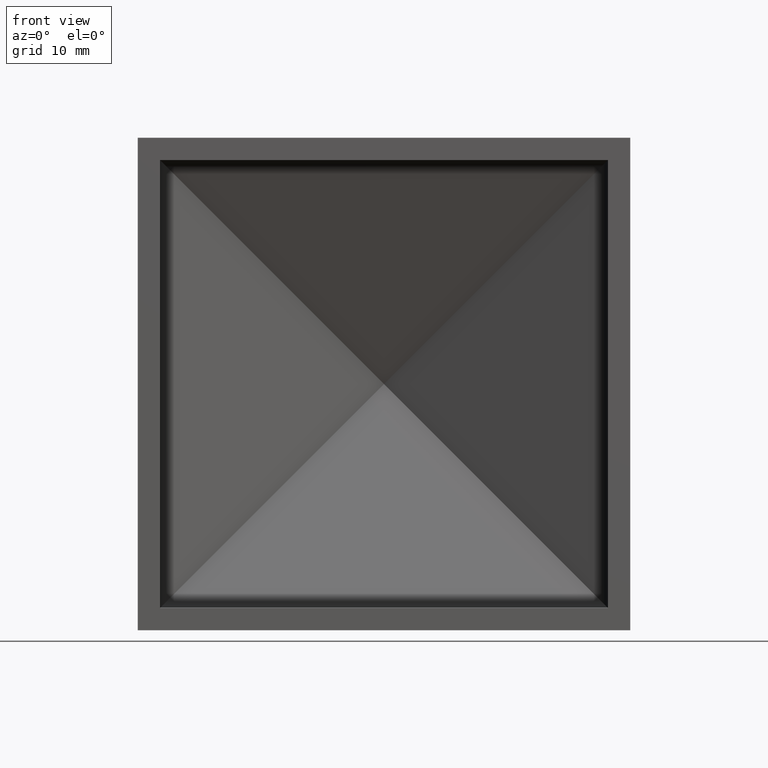
[diagram: clean part render]
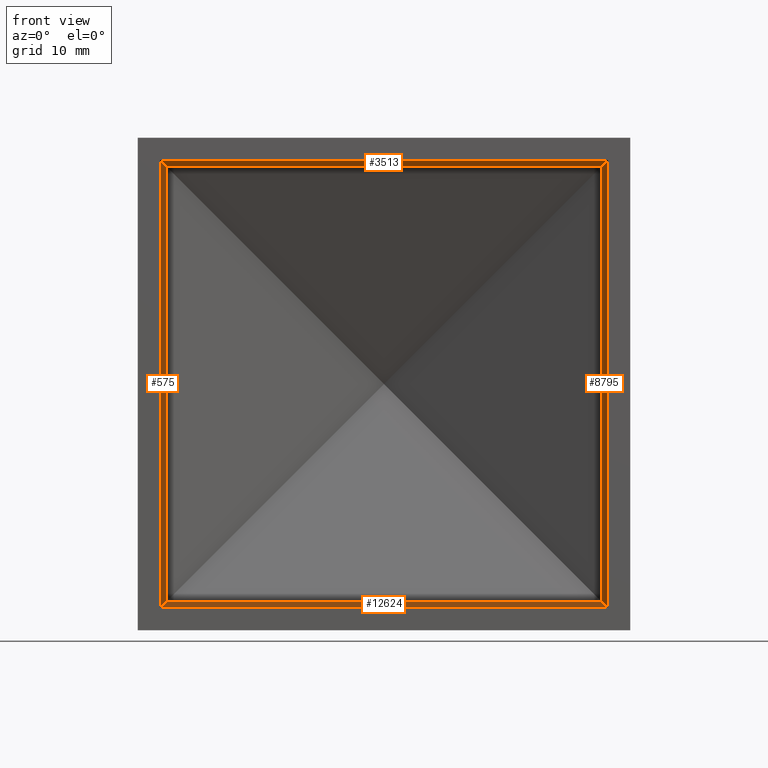
[diagram: same view with one multi-face feature highlighted, each face labeled with its STEP entity id]
A machine part, front view. The highlighted faces form ONE feature: a constant-radius fillet chain: 4 tangent blend faces with common blend radius 1 mm. The faces share edges in the B-rep.
Their STEP definitions:
[1] entity #8795 (Cylinder):
#24 = CARTESIAN_POINT ( 'NONE',  ( 19.41414115568450800, 8.979261153773027400, 19.41414115568449000 ) ) ;
#46 = CARTESIAN_POINT ( 'NONE',  ( 19.00000000000000000, 8.069048484575164400, -22.00000000000000000 ) ) ;
#65 = EDGE_CURVE ( 'NONE', #5117, #8418, #6607, .T. ) ;
#250 = LINE ( 'NONE', #898, #4968 ) ;
#317 = CARTESIAN_POINT ( 'NONE',  ( 19.99999999999998900, 8.069048484575166200, -20.00000000000000000 ) ) ;
#898 = CARTESIAN_POINT ( 'NONE',  ( 19.99999999999998900, 8.069048484575166200, -22.00000000000000000 ) ) ;
#1124 = CARTESIAN_POINT ( 'NONE',  ( 19.78153858745149700, 8.812097586250301300, -19.78153858745150700 ) ) ;
#1171 = CARTESIAN_POINT ( 'NONE',  ( 19.41414115568449000, 8.979261153773032700, -19.41414115568449700 ) ) ;
#1227 = CARTESIAN_POINT ( 'NONE',  ( 19.41414115568449700, 8.979261153773034500, -22.00000000000000000 ) ) ;
#2059 = FACE_OUTER_BOUND ( 'NONE', #2345, .T. ) ;
#2134 = AXIS2_PLACEMENT_3D ( 'NONE', #46, #10519, #9531 ) ;
#2168 = DIRECTION ( 'NONE',  ( -0.0000000000000000000, -0.0000000000000000000, 1.000000000000000000 ) ) ;
#2345 = EDGE_LOOP ( 'NONE', ( #10535, #10158, #7004, #12699 ) ) ;
#3067 = CARTESIAN_POINT ( 'NONE',  ( 19.99999999999999600, 8.069048484575164400, 19.99999999999999600 ) ) ;
#4809 =( BOUNDED_CURVE ( )  B_SPLINE_CURVE ( 3, ( #1171, #1124, #7945, #317 ),
 .UNSPECIFIED., .F., .T. ) 
 B_SPLINE_CURVE_WITH_KNOTS ( ( 4, 4 ),
 ( 1.997795362548790800, 3.141592653589791300 ),
 .UNSPECIFIED. ) 
 CURVE ( )  GEOMETRIC_REPRESENTATION_ITEM ( )  RATIONAL_B_SPLINE_CURVE ( ( 1.000000000000000000, 0.8939165922272380700, 0.8939165922272380700, 1.000000000000000000 ) ) 
 REPRESENTATION_ITEM ( '' )  );
#4968 = VECTOR ( 'NONE', #10604, 1000.000000000000000 ) ;
#5117 = VERTEX_POINT ( 'NONE', #10749 ) ;
#5398 = EDGE_CURVE ( 'NONE', #8787, #8418, #6982, .T. ) ;
#5574 = CARTESIAN_POINT ( 'NONE',  ( 19.41414115568449000, 8.979261153773032700, -19.41414115568449700 ) ) ;
#6418 = EDGE_CURVE ( 'NONE', #8787, #8215, #4809, .T. ) ;
#6607 =( BOUNDED_CURVE ( )  B_SPLINE_CURVE ( 3, ( #3067, #7912, #8890, #24 ),
 .UNSPECIFIED., .F., .F. ) 
 B_SPLINE_CURVE_WITH_KNOTS ( ( 4, 4 ),
 ( 0.0000000000000000000, 1.143797291040995500 ),
 .UNSPECIFIED. ) 
 CURVE ( )  GEOMETRIC_REPRESENTATION_ITEM ( )  RATIONAL_B_SPLINE_CURVE ( ( 1.000000000000000000, 0.8939165922272391800, 0.8939165922272391800, 1.000000000000000000 ) ) 
 REPRESENTATION_ITEM ( '' )  );
#6982 = LINE ( 'NONE', #1227, #11301 ) ;
#7004 = ORIENTED_EDGE ( 'NONE', *, *, #65, .T. ) ;
#7912 = CARTESIAN_POINT ( 'NONE',  ( 19.99999999999999300, 8.472687594642458500, 19.99999999999999300 ) ) ;
#7945 = CARTESIAN_POINT ( 'NONE',  ( 19.99999999999998600, 8.472687594642462000, -20.00000000000000400 ) ) ;
#8215 = VERTEX_POINT ( 'NONE', #10699 ) ;
#8418 = VERTEX_POINT ( 'NONE', #8532 ) ;
#8532 = CARTESIAN_POINT ( 'NONE',  ( 19.41414115568450800, 8.979261153773027400, 19.41414115568449000 ) ) ;
#8533 = EDGE_CURVE ( 'NONE', #8215, #5117, #250, .T. ) ;
#8787 = VERTEX_POINT ( 'NONE', #5574 ) ;
#8795 = ADVANCED_FACE ( 'NONE', ( #2059 ), #8990, .F. ) ;
#8890 = CARTESIAN_POINT ( 'NONE',  ( 19.78153858745150000, 8.812097586250297700, 19.78153858745150000 ) ) ;
#8990 = CYLINDRICAL_SURFACE ( 'NONE', #2134, 0.9999999999999974500 ) ;
#9531 = DIRECTION ( 'NONE',  ( 1.000000000000000000, 0.0000000000000000000, 0.0000000000000000000 ) ) ;
#10158 = ORIENTED_EDGE ( 'NONE', *, *, #8533, .T. ) ;
#10519 = DIRECTION ( 'NONE',  ( -0.0000000000000000000, -0.0000000000000000000, 1.000000000000000000 ) ) ;
#10535 = ORIENTED_EDGE ( 'NONE', *, *, #6418, .T. ) ;
#10604 = DIRECTION ( 'NONE',  ( 2.365532012695646200E-016, 0.0000000000000000000, 1.000000000000000000 ) ) ;
#10699 = CARTESIAN_POINT ( 'NONE',  ( 19.99999999999998900, 8.069048484575166200, -20.00000000000000000 ) ) ;
#10749 = CARTESIAN_POINT ( 'NONE',  ( 19.99999999999999600, 8.069048484575164400, 19.99999999999999600 ) ) ;
#11301 = VECTOR ( 'NONE', #2168, 1000.000000000000000 ) ;
#12699 = ORIENTED_EDGE ( 'NONE', *, *, #5398, .F. ) ;
[2] entity #12624 (Cylinder):
#317 = CARTESIAN_POINT ( 'NONE',  ( 19.99999999999998900, 8.069048484575166200, -20.00000000000000000 ) ) ;
#1124 = CARTESIAN_POINT ( 'NONE',  ( 19.78153858745149700, 8.812097586250301300, -19.78153858745150700 ) ) ;
#1171 = CARTESIAN_POINT ( 'NONE',  ( 19.41414115568449000, 8.979261153773032700, -19.41414115568449700 ) ) ;
#1726 = ORIENTED_EDGE ( 'NONE', *, *, #3223, .T. ) ;
#2762 = DIRECTION ( 'NONE',  ( 0.0000000000000000000, 0.0000000000000000000, -1.000000000000000000 ) ) ;
#3100 = ORIENTED_EDGE ( 'NONE', *, *, #6418, .F. ) ;
#3223 = EDGE_CURVE ( 'NONE', #5944, #8215, #10357, .T. ) ;
#3522 = CARTESIAN_POINT ( 'NONE',  ( -19.41414115568449700, 8.979261153773030900, -19.41414115568448700 ) ) ;
#4007 = EDGE_LOOP ( 'NONE', ( #12497, #1726, #3100, #10799 ) ) ;
#4809 =( BOUNDED_CURVE ( )  B_SPLINE_CURVE ( 3, ( #1171, #1124, #7945, #317 ),
 .UNSPECIFIED., .F., .T. ) 
 B_SPLINE_CURVE_WITH_KNOTS ( ( 4, 4 ),
 ( 1.997795362548790800, 3.141592653589791300 ),
 .UNSPECIFIED. ) 
 CURVE ( )  GEOMETRIC_REPRESENTATION_ITEM ( )  RATIONAL_B_SPLINE_CURVE ( ( 1.000000000000000000, 0.8939165922272380700, 0.8939165922272380700, 1.000000000000000000 ) ) 
 REPRESENTATION_ITEM ( '' )  );
#5431 = FACE_OUTER_BOUND ( 'NONE', #4007, .T. ) ;
#5574 = CARTESIAN_POINT ( 'NONE',  ( 19.41414115568449000, 8.979261153773032700, -19.41414115568449700 ) ) ;
#5780 = DIRECTION ( 'NONE',  ( 1.000000000000000000, -0.0000000000000000000, -4.440892098500626200E-016 ) ) ;
#5860 = DIRECTION ( 'NONE',  ( 1.000000000000000000, -0.0000000000000000000, -4.440892098500626200E-016 ) ) ;
#5876 = LINE ( 'NONE', #7976, #7375 ) ;
#5938 = CARTESIAN_POINT ( 'NONE',  ( -19.41414115568449700, 8.979261153773030900, -19.41414115568448700 ) ) ;
#5944 = VERTEX_POINT ( 'NONE', #6290 ) ;
#6290 = CARTESIAN_POINT ( 'NONE',  ( -20.00000000000000000, 8.069048484575164400, -19.99999999999998900 ) ) ;
#6418 = EDGE_CURVE ( 'NONE', #8787, #8215, #4809, .T. ) ;
#6929 = VECTOR ( 'NONE', #7893, 1000.000000000000000 ) ;
#7375 = VECTOR ( 'NONE', #5860, 1000.000000000000000 ) ;
#7502 = VERTEX_POINT ( 'NONE', #3522 ) ;
#7612 = EDGE_CURVE ( 'NONE', #5944, #7502, #10120, .T. ) ;
#7893 = DIRECTION ( 'NONE',  ( 1.000000000000000000, 0.0000000000000000000, -0.0000000000000000000 ) ) ;
#7945 = CARTESIAN_POINT ( 'NONE',  ( 19.99999999999998600, 8.472687594642462000, -20.00000000000000400 ) ) ;
#7976 = CARTESIAN_POINT ( 'NONE',  ( -22.00000000000002500, 8.979261153773030900, -19.41414115568448700 ) ) ;
#7983 = AXIS2_PLACEMENT_3D ( 'NONE', #11648, #5780, #2762 ) ;
#8215 = VERTEX_POINT ( 'NONE', #10699 ) ;
#8787 = VERTEX_POINT ( 'NONE', #5574 ) ;
#8810 = CARTESIAN_POINT ( 'NONE',  ( -19.78153858745150400, 8.812097586250299500, -19.78153858745149700 ) ) ;
#8863 = CARTESIAN_POINT ( 'NONE',  ( -20.00000000000000000, 8.069048484575164400, -19.99999999999998900 ) ) ;
#9614 = CARTESIAN_POINT ( 'NONE',  ( -22.00000000000000700, 8.069048484575166200, -19.99999999999999600 ) ) ;
#9782 = EDGE_CURVE ( 'NONE', #7502, #8787, #5876, .T. ) ;
#10120 =( BOUNDED_CURVE ( )  B_SPLINE_CURVE ( 3, ( #8863, #10902, #8810, #5938 ),
 .UNSPECIFIED., .F., .F. ) 
 B_SPLINE_CURVE_WITH_KNOTS ( ( 4, 4 ),
 ( 3.141592653589793100, 4.285389944630794400 ),
 .UNSPECIFIED. ) 
 CURVE ( )  GEOMETRIC_REPRESENTATION_ITEM ( )  RATIONAL_B_SPLINE_CURVE ( ( 1.000000000000000000, 0.8939165922272380700, 0.8939165922272380700, 1.000000000000000000 ) ) 
 REPRESENTATION_ITEM ( '' )  );
#10357 = LINE ( 'NONE', #9614, #6929 ) ;
#10366 = CYLINDRICAL_SURFACE ( 'NONE', #7983, 0.9999999999999974500 ) ;
#10699 = CARTESIAN_POINT ( 'NONE',  ( 19.99999999999998900, 8.069048484575166200, -20.00000000000000000 ) ) ;
#10799 = ORIENTED_EDGE ( 'NONE', *, *, #9782, .F. ) ;
#10902 = CARTESIAN_POINT ( 'NONE',  ( -19.99999999999999600, 8.472687594642462000, -19.99999999999998600 ) ) ;
#11648 = CARTESIAN_POINT ( 'NONE',  ( -22.00000000000002500, 8.069048484575164400, -18.99999999999998900 ) ) ;
#12497 = ORIENTED_EDGE ( 'NONE', *, *, #7612, .F. ) ;
#12624 = ADVANCED_FACE ( 'NONE', ( #5431 ), #10366, .F. ) ;
[3] entity #575 (Cylinder):
#539 = DIRECTION ( 'NONE',  ( 1.000000000000000000, 0.0000000000000000000, 0.0000000000000000000 ) ) ;
#575 = ADVANCED_FACE ( 'NONE', ( #3934 ), #766, .F. ) ;
#766 = CYLINDRICAL_SURFACE ( 'NONE', #10140, 0.9999999999999974500 ) ;
#1226 =( BOUNDED_CURVE ( )  B_SPLINE_CURVE ( 3, ( #6567, #9594, #10541, #11369 ),
 .UNSPECIFIED., .F., .T. ) 
 B_SPLINE_CURVE_WITH_KNOTS ( ( 4, 4 ),
 ( 5.139388016138585900, 6.283185307179584500 ),
 .UNSPECIFIED. ) 
 CURVE ( )  GEOMETRIC_REPRESENTATION_ITEM ( )  RATIONAL_B_SPLINE_CURVE ( ( 1.000000000000000000, 0.8939165922272385200, 0.8939165922272385200, 1.000000000000000000 ) ) 
 REPRESENTATION_ITEM ( '' )  );
#1251 = EDGE_CURVE ( 'NONE', #7502, #6777, #7290, .T. ) ;
#1719 = CARTESIAN_POINT ( 'NONE',  ( -19.41414115568450400, 8.979261153773027400, 19.41414115568450400 ) ) ;
#1792 = VECTOR ( 'NONE', #6916, 1000.000000000000000 ) ;
#2872 = CARTESIAN_POINT ( 'NONE',  ( -19.41414115568449400, 8.979261153773030900, -22.00000000000000000 ) ) ;
#3522 = CARTESIAN_POINT ( 'NONE',  ( -19.41414115568449700, 8.979261153773030900, -19.41414115568448700 ) ) ;
#3934 = FACE_OUTER_BOUND ( 'NONE', #10199, .T. ) ;
#4973 = CARTESIAN_POINT ( 'NONE',  ( -19.00000000000000000, 8.069048484575164400, -22.00000000000000000 ) ) ;
#5936 = ORIENTED_EDGE ( 'NONE', *, *, #9309, .T. ) ;
#5938 = CARTESIAN_POINT ( 'NONE',  ( -19.41414115568449700, 8.979261153773030900, -19.41414115568448700 ) ) ;
#5944 = VERTEX_POINT ( 'NONE', #6290 ) ;
#6290 = CARTESIAN_POINT ( 'NONE',  ( -20.00000000000000000, 8.069048484575164400, -19.99999999999998900 ) ) ;
#6567 = CARTESIAN_POINT ( 'NONE',  ( -19.41414115568450400, 8.979261153773027400, 19.41414115568450400 ) ) ;
#6777 = VERTEX_POINT ( 'NONE', #1719 ) ;
#6916 = DIRECTION ( 'NONE',  ( -0.0000000000000000000, 0.0000000000000000000, 1.000000000000000000 ) ) ;
#7290 = LINE ( 'NONE', #2872, #1792 ) ;
#7502 = VERTEX_POINT ( 'NONE', #3522 ) ;
#7612 = EDGE_CURVE ( 'NONE', #5944, #7502, #10120, .T. ) ;
#7674 = DIRECTION ( 'NONE',  ( -0.0000000000000000000, -0.0000000000000000000, 1.000000000000000000 ) ) ;
#8482 = ORIENTED_EDGE ( 'NONE', *, *, #8730, .F. ) ;
#8587 = CARTESIAN_POINT ( 'NONE',  ( -19.99999999999999600, 8.069048484575166200, 20.00000000000000700 ) ) ;
#8686 = ORIENTED_EDGE ( 'NONE', *, *, #7612, .T. ) ;
#8730 = EDGE_CURVE ( 'NONE', #5944, #9308, #10667, .T. ) ;
#8810 = CARTESIAN_POINT ( 'NONE',  ( -19.78153858745150400, 8.812097586250299500, -19.78153858745149700 ) ) ;
#8863 = CARTESIAN_POINT ( 'NONE',  ( -20.00000000000000000, 8.069048484575164400, -19.99999999999998900 ) ) ;
#9292 = DIRECTION ( 'NONE',  ( -0.0000000000000000000, -0.0000000000000000000, 1.000000000000000000 ) ) ;
#9309 = EDGE_CURVE ( 'NONE', #6777, #9308, #1226, .T. ) ;
#9308 = VERTEX_POINT ( 'NONE', #8587 ) ;
#9594 = CARTESIAN_POINT ( 'NONE',  ( -19.78153858745150000, 8.812097586250299500, 19.78153858745151100 ) ) ;
#10120 =( BOUNDED_CURVE ( )  B_SPLINE_CURVE ( 3, ( #8863, #10902, #8810, #5938 ),
 .UNSPECIFIED., .F., .F. ) 
 B_SPLINE_CURVE_WITH_KNOTS ( ( 4, 4 ),
 ( 3.141592653589793100, 4.285389944630794400 ),
 .UNSPECIFIED. ) 
 CURVE ( )  GEOMETRIC_REPRESENTATION_ITEM ( )  RATIONAL_B_SPLINE_CURVE ( ( 1.000000000000000000, 0.8939165922272380700, 0.8939165922272380700, 1.000000000000000000 ) ) 
 REPRESENTATION_ITEM ( '' )  );
#10140 = AXIS2_PLACEMENT_3D ( 'NONE', #4973, #9292, #539 ) ;
#10199 = EDGE_LOOP ( 'NONE', ( #8686, #11249, #5936, #8482 ) ) ;
#10221 = VECTOR ( 'NONE', #7674, 1000.000000000000000 ) ;
#10541 = CARTESIAN_POINT ( 'NONE',  ( -19.99999999999999600, 8.472687594642462000, 20.00000000000000400 ) ) ;
#10667 = LINE ( 'NONE', #11727, #10221 ) ;
#10902 = CARTESIAN_POINT ( 'NONE',  ( -19.99999999999999600, 8.472687594642462000, -19.99999999999998600 ) ) ;
#11249 = ORIENTED_EDGE ( 'NONE', *, *, #1251, .T. ) ;
#11369 = CARTESIAN_POINT ( 'NONE',  ( -19.99999999999999600, 8.069048484575166200, 20.00000000000000700 ) ) ;
#11727 = CARTESIAN_POINT ( 'NONE',  ( -19.99999999999999600, 8.069048484575164400, -22.00000000000000000 ) ) ;
[4] entity #3513 (Cylinder):
#24 = CARTESIAN_POINT ( 'NONE',  ( 19.41414115568450800, 8.979261153773027400, 19.41414115568449000 ) ) ;
#65 = EDGE_CURVE ( 'NONE', #5117, #8418, #6607, .T. ) ;
#72 = CARTESIAN_POINT ( 'NONE',  ( -22.00000000000002100, 8.069048484575164400, 19.00000000000001100 ) ) ;
#73 = ORIENTED_EDGE ( 'NONE', *, *, #9309, .F. ) ;
#386 = CYLINDRICAL_SURFACE ( 'NONE', #4651, 1.000000000000000900 ) ;
#1226 =( BOUNDED_CURVE ( )  B_SPLINE_CURVE ( 3, ( #6567, #9594, #10541, #11369 ),
 .UNSPECIFIED., .F., .T. ) 
 B_SPLINE_CURVE_WITH_KNOTS ( ( 4, 4 ),
 ( 5.139388016138585900, 6.283185307179584500 ),
 .UNSPECIFIED. ) 
 CURVE ( )  GEOMETRIC_REPRESENTATION_ITEM ( )  RATIONAL_B_SPLINE_CURVE ( ( 1.000000000000000000, 0.8939165922272385200, 0.8939165922272385200, 1.000000000000000000 ) ) 
 REPRESENTATION_ITEM ( '' )  );
#1402 = EDGE_CURVE ( 'NONE', #9308, #5117, #3154, .T. ) ;
#1719 = CARTESIAN_POINT ( 'NONE',  ( -19.41414115568450400, 8.979261153773027400, 19.41414115568450400 ) ) ;
#2450 = ORIENTED_EDGE ( 'NONE', *, *, #1402, .F. ) ;
#3067 = CARTESIAN_POINT ( 'NONE',  ( 19.99999999999999600, 8.069048484575164400, 19.99999999999999600 ) ) ;
#3154 = LINE ( 'NONE', #6092, #10700 ) ;
#3513 = ADVANCED_FACE ( 'NONE', ( #3723 ), #386, .F. ) ;
#3574 = ORIENTED_EDGE ( 'NONE', *, *, #65, .F. ) ;
#3723 = FACE_OUTER_BOUND ( 'NONE', #11151, .T. ) ;
#3811 = DIRECTION ( 'NONE',  ( 0.0000000000000000000, 0.0000000000000000000, -1.000000000000000000 ) ) ;
#4651 = AXIS2_PLACEMENT_3D ( 'NONE', #72, #6886, #3811 ) ;
#5117 = VERTEX_POINT ( 'NONE', #10749 ) ;
#5136 = VECTOR ( 'NONE', #8528, 1000.000000000000000 ) ;
#5611 = LINE ( 'NONE', #5671, #5136 ) ;
#5671 = CARTESIAN_POINT ( 'NONE',  ( -22.00000000000002100, 8.979261153773029100, 19.41414115568450400 ) ) ;
#6092 = CARTESIAN_POINT ( 'NONE',  ( -22.00000000000002100, 8.069048484575164400, 20.00000000000001100 ) ) ;
#6567 = CARTESIAN_POINT ( 'NONE',  ( -19.41414115568450400, 8.979261153773027400, 19.41414115568450400 ) ) ;
#6607 =( BOUNDED_CURVE ( )  B_SPLINE_CURVE ( 3, ( #3067, #7912, #8890, #24 ),
 .UNSPECIFIED., .F., .F. ) 
 B_SPLINE_CURVE_WITH_KNOTS ( ( 4, 4 ),
 ( 0.0000000000000000000, 1.143797291040995500 ),
 .UNSPECIFIED. ) 
 CURVE ( )  GEOMETRIC_REPRESENTATION_ITEM ( )  RATIONAL_B_SPLINE_CURVE ( ( 1.000000000000000000, 0.8939165922272391800, 0.8939165922272391800, 1.000000000000000000 ) ) 
 REPRESENTATION_ITEM ( '' )  );
#6777 = VERTEX_POINT ( 'NONE', #1719 ) ;
#6886 = DIRECTION ( 'NONE',  ( 1.000000000000000000, -0.0000000000000000000, -4.440892098500626200E-016 ) ) ;
#7912 = CARTESIAN_POINT ( 'NONE',  ( 19.99999999999999300, 8.472687594642458500, 19.99999999999999300 ) ) ;
#8418 = VERTEX_POINT ( 'NONE', #8532 ) ;
#8528 = DIRECTION ( 'NONE',  ( 1.000000000000000000, -1.674023261079129100E-016, -7.616702683308050400E-017 ) ) ;
#8532 = CARTESIAN_POINT ( 'NONE',  ( 19.41414115568450800, 8.979261153773027400, 19.41414115568449000 ) ) ;
#8587 = CARTESIAN_POINT ( 'NONE',  ( -19.99999999999999600, 8.069048484575166200, 20.00000000000000700 ) ) ;
#8890 = CARTESIAN_POINT ( 'NONE',  ( 19.78153858745150000, 8.812097586250297700, 19.78153858745150000 ) ) ;
#9073 = DIRECTION ( 'NONE',  ( 1.000000000000000000, -0.0000000000000000000, -4.440892098500626200E-016 ) ) ;
#9309 = EDGE_CURVE ( 'NONE', #6777, #9308, #1226, .T. ) ;
#9308 = VERTEX_POINT ( 'NONE', #8587 ) ;
#9594 = CARTESIAN_POINT ( 'NONE',  ( -19.78153858745150000, 8.812097586250299500, 19.78153858745151100 ) ) ;
#10541 = CARTESIAN_POINT ( 'NONE',  ( -19.99999999999999600, 8.472687594642462000, 20.00000000000000400 ) ) ;
#10700 = VECTOR ( 'NONE', #9073, 1000.000000000000000 ) ;
#10749 = CARTESIAN_POINT ( 'NONE',  ( 19.99999999999999600, 8.069048484575164400, 19.99999999999999600 ) ) ;
#11151 = EDGE_LOOP ( 'NONE', ( #73, #12461, #3574, #2450 ) ) ;
#11369 = CARTESIAN_POINT ( 'NONE',  ( -19.99999999999999600, 8.069048484575166200, 20.00000000000000700 ) ) ;
#11579 = EDGE_CURVE ( 'NONE', #6777, #8418, #5611, .T. ) ;
#12461 = ORIENTED_EDGE ( 'NONE', *, *, #11579, .T. ) ;